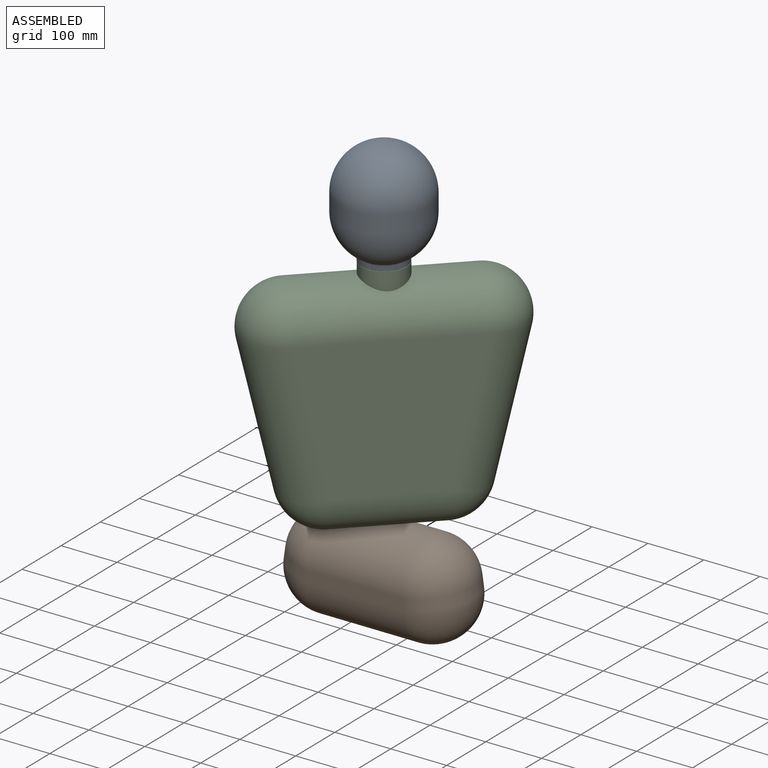
[diagram: assembled view]
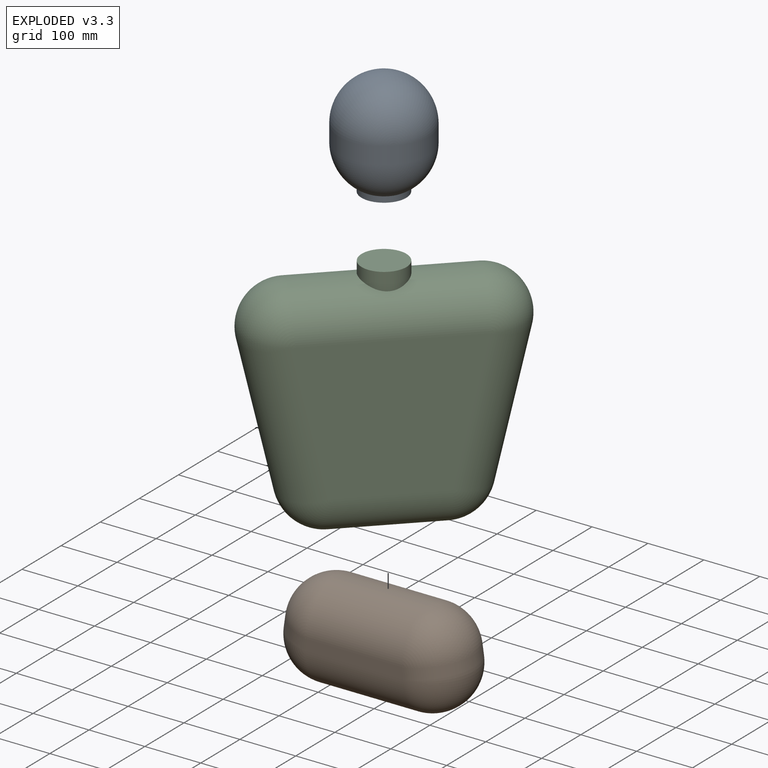
[diagram: exploded view]
GUIDED TOUR — FREECAD ASSEMBLY "plywood_dingy_model"

This assembly has 3 components, labeled P0..P2 below (a component is one placed body or linked part; the same part can appear more than once), held together by 2 modeled joints. A joint is a constraint between two components; its type names the relative motion it leaves free:
  FASTENED — locks the two components together rigidly (no relative motion),
  REVOLUTE — leaves rotation about the listed axis free (a hinge).
Axis/direction vectors are unit vectors and 'through' points are millimeter coordinates, both in the assembly's world frame.

MATES
  1. REVOLUTE [Revolute] "Joint": P1 <-> P2, axis (0.000, 0.000, 1.000) through (0.00, -74.50, 170.00) mm
  2. FASTENED [Fixed] "Joint001": P0 <-> P2, direction (0.000, 0.000, 1.000) through (0.35, -74.85, 590.00) mm

ASSEMBLY ORDER
  1. P2 — the base component [order verified]
  2. P0 [order verified]
  3. P1 [order verified]
Order-tag legend:
  [order verified] — this step's position reverses a verified removal order: the component was checked to insert without passing through the ones already placed.

Of the 3 components, 3 carry a construction recipe — the FreeCAD feature program (sketches with constraints, then the solid features that consume them) that regenerates the part from scratch, quoted from this document or from the linked companion document it references; the rest are supplied as boundary geometry only. The tour below walks the components in assembly order: each is shown spotlighted twice — in the assembled view, then in the exploded view, where a leader line traces a displaced component back to its assembled socket (components that stay in place when exploded have no leader line; saturated green if recipe-attached, orange if geometry-only; every other component desaturated gray) — followed by its recipe or geometry summary and the mates that hold it.
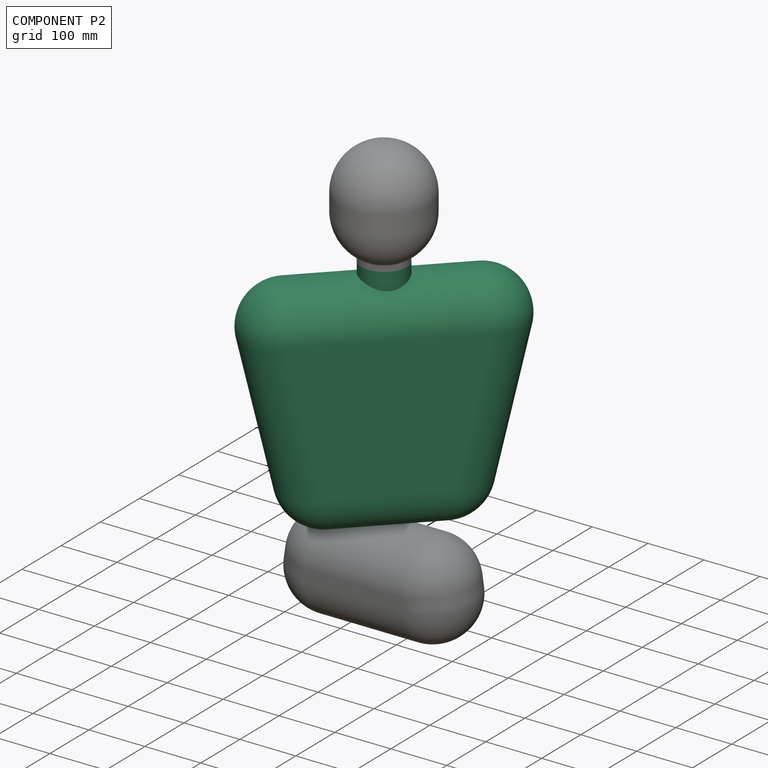
[diagram: component P2 — assembled]
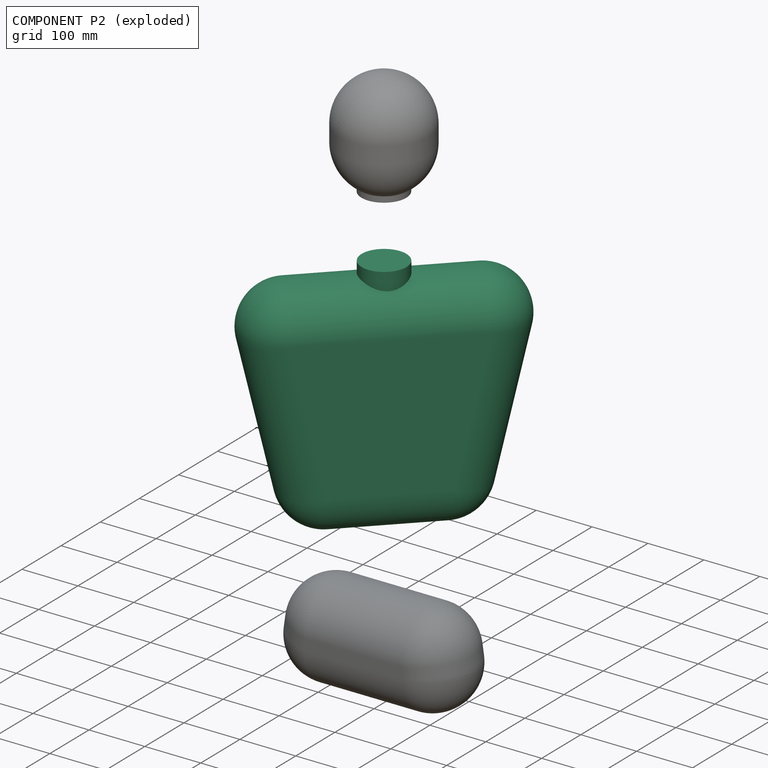
[diagram: component P2 — exploded]
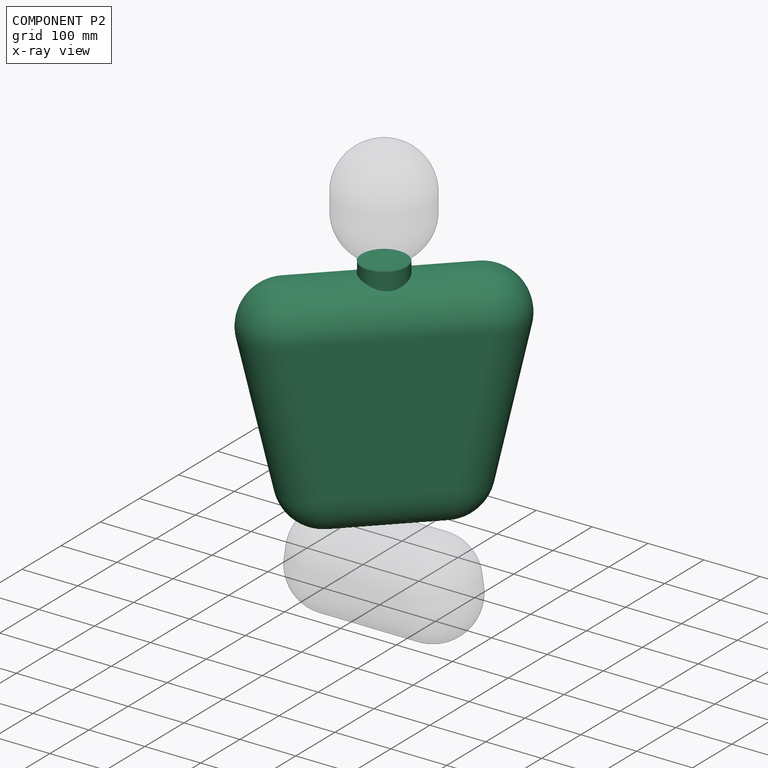
[diagram: component P2 — x-ray view]
COMPONENT P2 — recipe-attached ("torso_upper001", modeled in this document).
Held by: REVOLUTE mate "Joint" to P1; FASTENED mate "Joint001" to P0.
Construction recipe (the document's own serialized feature program — sketch geometry with constraints, then the solid features built on it; lengths are millimeters unless a unit is written):

FEATURE [Sketcher::SketchObject] Sketch008
  ArcFitTolerance = 1e-06
  AttachmentSupport = -> [XZ_Plane008]
  FullyConstrained = true
  MakeInternals = false
  MapMode = 5
  Placement = pos=(0,0,0) rot=(1,0,0;1.5708rad)
  expr: .Constraints.torso_upper = <<male_sizes>>.torso_upper_length
  expr: .Constraints.waist = <<male_sizes>>.torso_waist_width
  expr: Constraints[13] = <<male_sizes>>.torso_shoulder_width
  expr: Constraints[14] = <<male_sizes>>.torso_thickness / 2
  expr: Constraints[15] = <<male_sizes>>.torso_thickness / 2
  expr: Constraints[24] = <<male_sizes>>.torso_thickness / 2
  expr: Constraints[25] = <<male_sizes>>.torso_thickness / 2
  sketch-geometry (12):
    g0: LineSegment StartX=-146.25 StartY=400 StartZ=0 EndX=146.25 EndY=400 EndZ=0
    g1: LineSegment StartX=-90 StartY=9.94e-14 StartZ=0 EndX=90 EndY=-2.329e-13 EndZ=0
    g2: LineSegment StartX=-219.421 StartY=308.537 StartZ=0 EndX=-163.171 EndY=58.5366 EndZ=0
    g3: LineSegment StartX=219.421 StartY=308.537 StartZ=0 EndX=163.171 EndY=58.5366 EndZ=0
    g4: ArcOfCircle CenterX=-146.25 CenterY=325 CenterZ=0 NormalX=0 NormalY=0 NormalZ=1 AngleXU=0 Radius=75 StartAngle=1.5708 EndAngle=3.36291
    g5: GeomPoint X=-240 Y=400 Z=0
    g6: ArcOfCircle CenterX=146.25 CenterY=325 CenterZ=0 NormalX=0 NormalY=0 NormalZ=1 AngleXU=0 Radius=75 StartAngle=6.06187 EndAngle=7.85398
    g7: GeomPoint X=240 Y=400 Z=0
    g8: ArcOfCircle CenterX=-90 CenterY=75 CenterZ=0 NormalX=0 NormalY=0 NormalZ=1 AngleXU=0 Radius=75 StartAngle=3.36291 EndAngle=4.71239
    g9: GeomPoint X=-150 Y=0 Z=0
    g10: ArcOfCircle CenterX=90 CenterY=75 CenterZ=0 NormalX=0 NormalY=0 NormalZ=1 AngleXU=0 Radius=75 StartAngle=4.71239 EndAngle=6.06187
    g11: GeomPoint X=150 Y=0 Z=0
  constraints (26):
    c: Symmetric(g5,g7,g-2)
    c: DistanceX(g9,g11) = 300  'waist'
    c: Symmetric(g11,g9,g-2)
    c: DistanceY(g9,g5) = 400  'torso_upper'
    c: DistanceY(g9) = 0
    c: PointOnObject(g5,g2)
    c: PointOnObject(g5,g0)
    c: Tangent(g2,g4) = -1.5708
    c: Tangent(g0,g4) = 1.5708
    c: PointOnObject(g7,g0)
    c: PointOnObject(g7,g3)
    c: Tangent(g0,g6) = 1.5708
    c: Tangent(g3,g6) = 1.5708
    c: DistanceX(g5,g7) = 480
    c: Distance(g4,g2) = 75
    c: Distance(g6,g3) = 75
    c: PointOnObject(g9,g2)
    c: PointOnObject(g9,g1)
    c: Tangent(g2,g8) = -1.5708
    c: Tangent(g1,g8) = -1.5708
    c: PointOnObject(g11,g1)
    c: PointOnObject(g11,g3)
    c: Tangent(g1,g10) = -1.5708
    c: Tangent(g3,g10) = 1.5708
    c: Distance(g8,g2) = 75
    c: Distance(g10,g3) = 75
FEATURE [PartDesign::Pad] Pad
  Direction = (0,-1,2e-16)
  Length = 150
  Length2 = 10
  Placement = pos=(0,0,0) rot=(1,0,0;1.5708rad)
  Profile = -> Sketch008
  ReferenceAxis = -> Sketch008 [N_Axis]
  Refine = true
  Suppressed = false
  Type = 0
  expr: Length = <<male_sizes>>.torso_thickness
FEATURE [PartDesign::Fillet] Fillet
  Base = -> Pad [Edge24,Edge7,Edge13,Edge19]
  BaseFeature = -> Pad
  Placement = pos=(0,0,0) rot=(1,0,0;1.5708rad)
  Radius = 75
  Refine = true
  SupportTransform = false
  Suppressed = false
  UseAllEdges = false
  expr: Radius = <<male_sizes>>.torso_thickness / 2
FEATURE [PartDesign::Fillet] Fillet001
  Base = -> Fillet [Face4]
  BaseFeature = -> Fillet
  Placement = pos=(0,0,0) rot=(1,0,0;1.5708rad)
  Radius = 74
  Refine = true
  SupportTransform = false
  Suppressed = false
  UseAllEdges = false
  expr: Radius = <<male_sizes>>.torso_thickness / 2 - 1 mm
FEATURE [PartDesign::AdditiveCylinder] Cylinder008
  Angle = 360
  AttacherType = Attacher::AttachEngine3D
  AttachmentOffset = pos=(0,75,-20) rot=(0,0,1;0rad)
  AttachmentSupport = -> [Fillet001]
  BaseFeature = -> Fillet001
  FirstAngle = 0
  Height = 40
  MapMode = 5
  Placement = pos=(-4.446e-13,-75,380) rot=(0,0,1;3.14159rad)
  Radius = 40
  Refine = true
  SecondAngle = 0
  Suppressed = false
  expr: .AttachmentOffset.Base.y = <<male_sizes>>.torso_thickness / 2
  expr: .AttachmentOffset.Base.z = -<<male_sizes>>.head_width / 8
  expr: Height = <<male_sizes>>.head_width / 4
  expr: Radius = <<male_sizes>>.head_width / 4
FEATURE [PartDesign::Body] Body004  label="torso_upper"
  AllowCompound = false
  Group = -> [Sketch008,Pad,Fillet,Fillet001,Cylinder008]
  Origin = -> Origin008
  Tip = -> Cylinder008
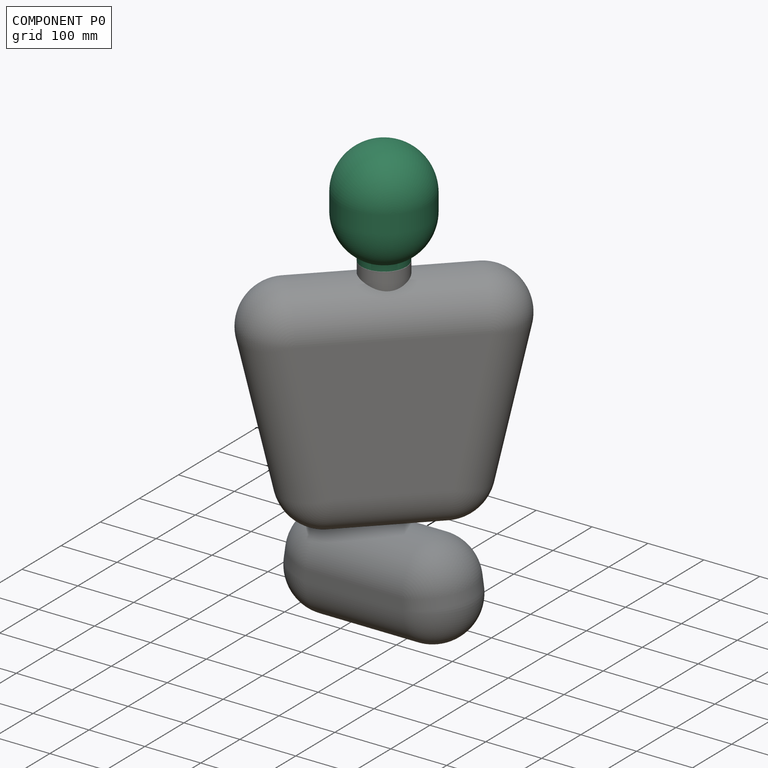
[diagram: component P0 — assembled]
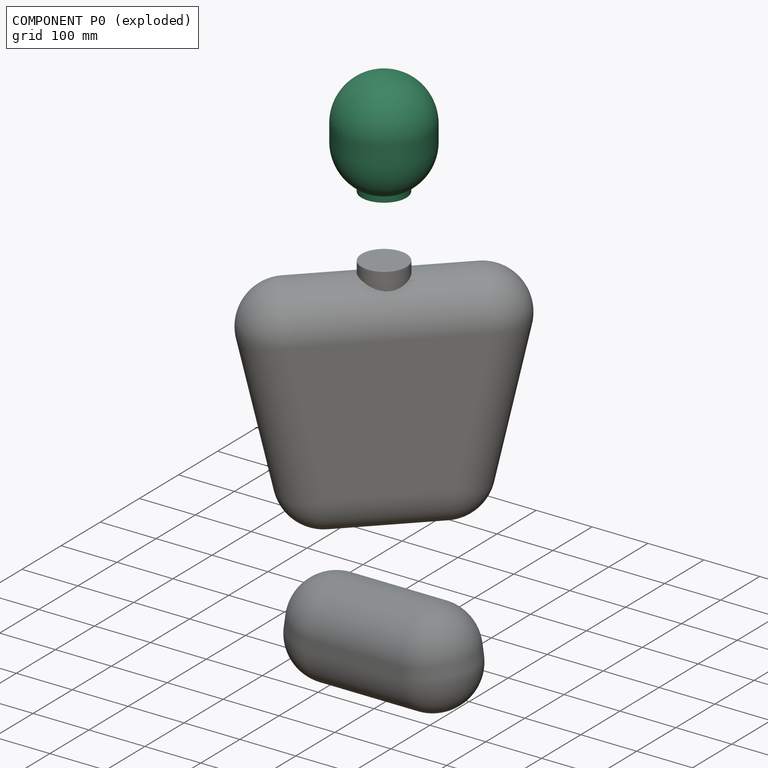
[diagram: component P0 — exploded]
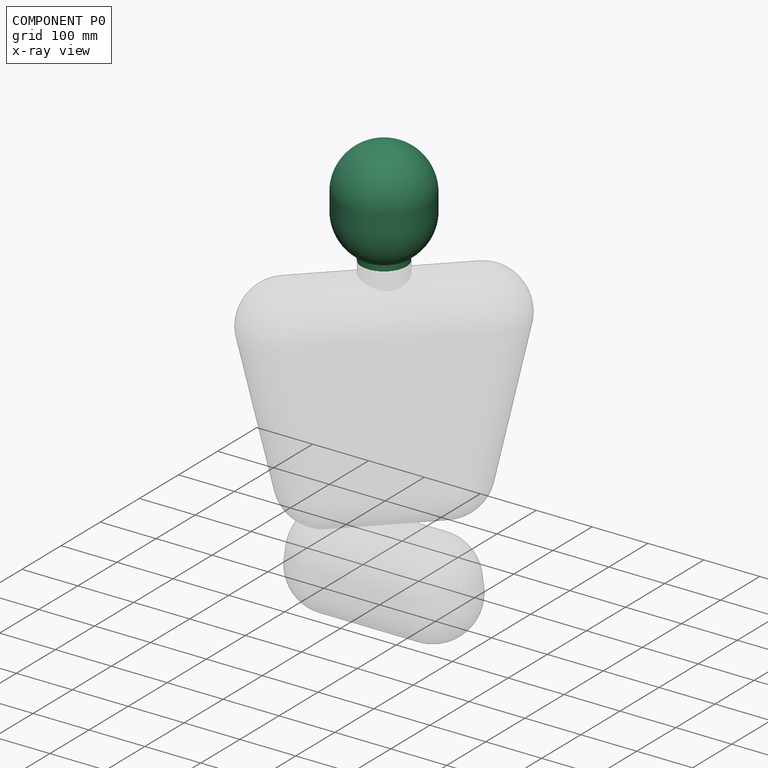
[diagram: component P0 — x-ray view]
COMPONENT P0 — recipe-attached ("head001", modeled in this document).
Held by: FASTENED mate "Joint001" to P2.
Construction recipe (the document's own serialized feature program — sketch geometry with constraints, then the solid features built on it; lengths are millimeters unless a unit is written):

FEATURE [Sketcher::SketchObject] Sketch010
  ArcFitTolerance = 1e-06
  AttachmentSupport = -> [XZ_Plane007]
  FullyConstrained = true
  MakeInternals = false
  MapMode = 5
  Placement = pos=(0,0,0) rot=(1,0,0;1.5708rad)
  expr: .Constraints.head_width = <<male_sizes>>.head_width / 2
  expr: Constraints[8] = <<male_sizes>>.head_height - <<male_sizes>>.head_width
  expr: Constraints[9] = <<male_sizes>>.head_width / 2
  sketch-geometry (4):
    g0: ArcOfCircle CenterX=0 CenterY=110 CenterZ=0 NormalX=0 NormalY=0 NormalZ=1 AngleXU=0 Radius=80 StartAngle=1e-16 EndAngle=3.14159
    g1: ArcOfCircle CenterX=5.3e-15 CenterY=80 CenterZ=0 NormalX=0 NormalY=0 NormalZ=1 AngleXU=0 Radius=80 StartAngle=3.14159 EndAngle=6.28319
    g2: LineSegment StartX=80 StartY=110 StartZ=0 EndX=80 EndY=80 EndZ=0
    g3: LineSegment StartX=-80 StartY=110 StartZ=0 EndX=-80 EndY=80 EndZ=0
  constraints (10):
    c: Tangent(g0,g2) = 1.5708
    c: Tangent(g0,g3) = -1.5708
    c: Tangent(g1,g2) = 1.5708
    c: Tangent(g1,g3) = -1.5708
    c: Equal(g0,g1)
    c: Vertical(g2)
    c: DistanceX(g0) = 0
    c: DistanceX(g0,g0) = 80  'head_width'
    c: DistanceY(g1,g0) = 30
    c: DistanceY(g1) = 80
FEATURE [PartDesign::Pad] Pad002
  Direction = (0,-1,2e-16)
  Length = 160
  Length2 = 10
  Placement = pos=(0,0,0) rot=(1,0,0;1.5708rad)
  Profile = -> Sketch010
  ReferenceAxis = -> Sketch010 [N_Axis]
  Refine = true
  Suppressed = false
  Type = 0
  expr: Length = <<male_sizes>>.head_width
FEATURE [PartDesign::Fillet] Fillet004
  Base = -> Pad002 [Face5,Face6]
  BaseFeature = -> Pad002
  Placement = pos=(0,0,0) rot=(1,0,0;1.5708rad)
  Radius = 79
  Refine = true
  SupportTransform = false
  Suppressed = false
  UseAllEdges = false
  expr: Radius = <<male_sizes>>.head_width / 2 - 1 mm
FEATURE [PartDesign::AdditiveCylinder] Cylinder
  Angle = 360
  AttacherType = Attacher::AttachEngine3D
  AttachmentOffset = pos=(0,-80,0) rot=(0,0,1;0rad)
  AttachmentSupport = -> [XY_Plane007]
  BaseFeature = -> Fillet004
  FirstAngle = 0
  Height = 47.5
  MapMode = 5
  Placement = pos=(0,-80,0) rot=(0,0,1;0rad)
  Radius = 40
  Refine = true
  SecondAngle = 0
  Suppressed = false
  expr: .AttachmentOffset.Base.y = -<<male_sizes>>.head_width / 2
  expr: Height = <<male_sizes>>.head_height / 4
  expr: Radius = <<male_sizes>>.head_width / 4
FEATURE [PartDesign::Body] Body003  label="head"
  AllowCompound = false
  Group = -> [Sketch010,Pad002,Fillet004,Cylinder]
  Origin = -> Origin007
  Tip = -> Cylinder
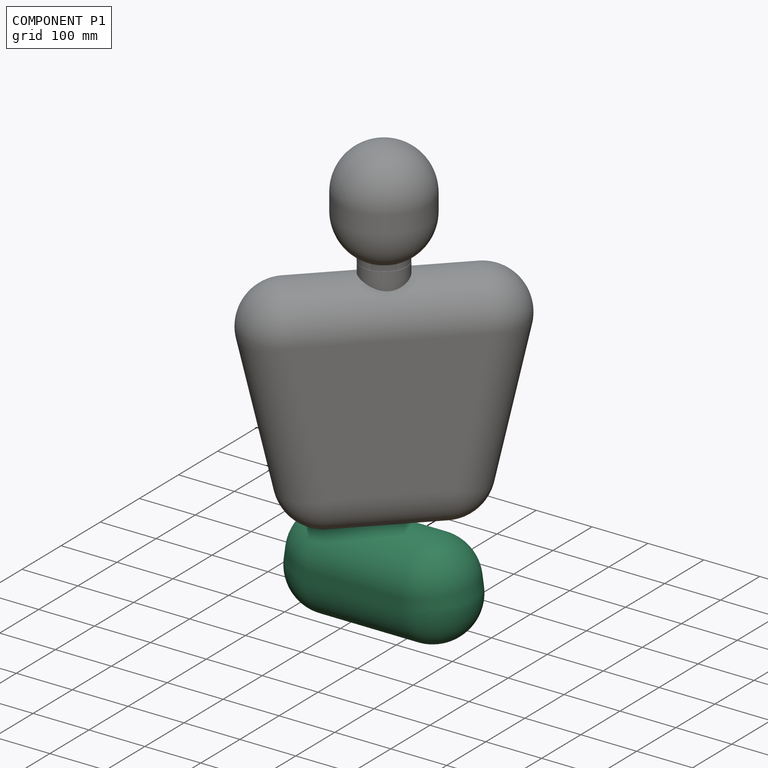
[diagram: component P1 — assembled]
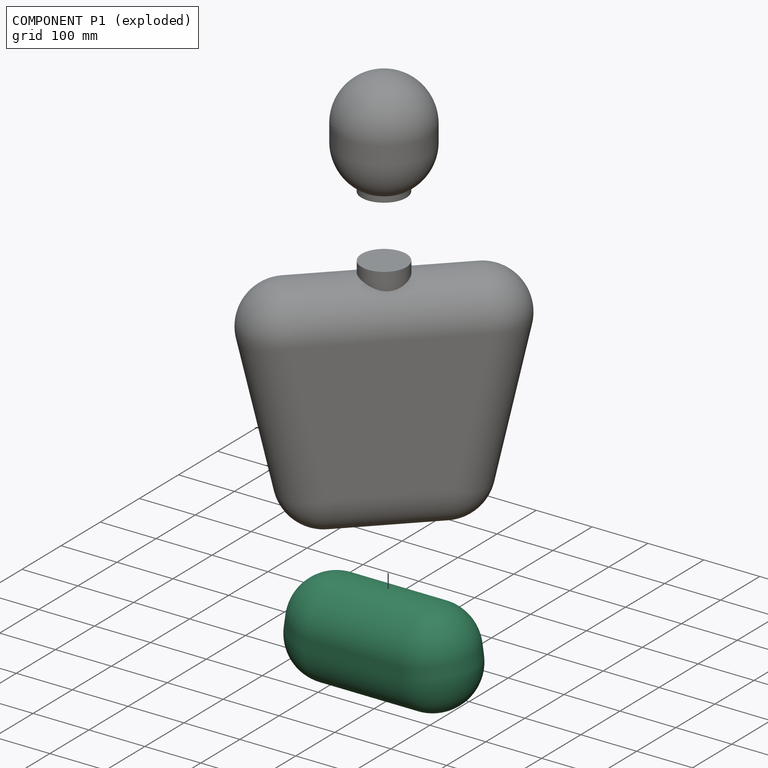
[diagram: component P1 — exploded]
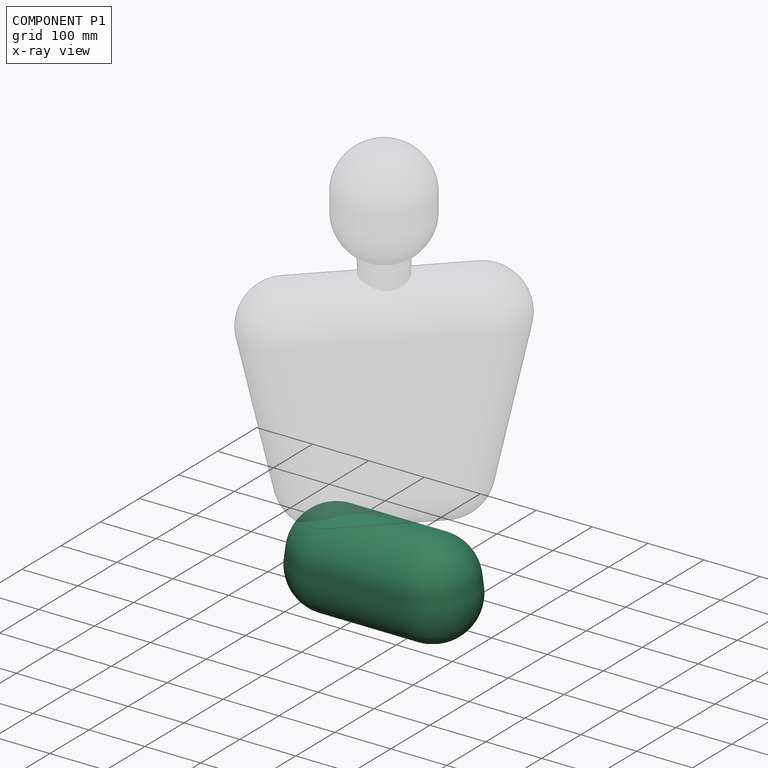
[diagram: component P1 — x-ray view]
COMPONENT P1 — recipe-attached ("torso_lower001", modeled in this document).
Held by: REVOLUTE mate "Joint" to P2.
Construction recipe (the document's own serialized feature program — sketch geometry with constraints, then the solid features built on it; lengths are millimeters unless a unit is written):

FEATURE [Sketcher::SketchObject] Sketch009
  ArcFitTolerance = 1e-06
  AttachmentSupport = -> [XZ_Plane009]
  FullyConstrained = true
  MakeInternals = false
  MapMode = 5
  Placement = pos=(0,0,0) rot=(1,0,0;1.5708rad)
  expr: .Constraints.hips = <<male_sizes>>.torso_hip_width
  expr: .Constraints.waist = <<male_sizes>>.torso_waist_width
  expr: Constraints[22] = <<male_sizes>>.torso_thickness / 2
  expr: Constraints[23] = <<male_sizes>>.torso_thickness / 2
  expr: Constraints[24] = <<male_sizes>>.torso_thickness / 2
  expr: Constraints[25] = <<male_sizes>>.torso_thickness / 2
  expr: Constraints[4] = <<male_sizes>>.torso_lower_length
  sketch-geometry (12):
    g0: LineSegment StartX=-85.2228 StartY=170 StartZ=0 EndX=85.2228 EndY=170 EndZ=0
    g1: LineSegment StartX=87.23 StartY=0 StartZ=0 EndX=-88.1639 EndY=0 EndZ=0
    g2: LineSegment StartX=-159.425 StartY=105.912 StartZ=0 EndX=-162.366 EndY=85.912 EndZ=0
    g3: LineSegment StartX=162.23 StartY=86.8361 StartZ=0 EndX=159.425 EndY=105.912 EndZ=0
    g4: ArcOfCircle CenterX=-85.2228 CenterY=95 CenterZ=0 NormalX=0 NormalY=0 NormalZ=1 AngleXU=0 Radius=75 StartAngle=1.5708 EndAngle=2.99558
    g5: GeomPoint X=-150 Y=170 Z=0
    g6: ArcOfCircle CenterX=85.2228 CenterY=95 CenterZ=0 NormalX=0 NormalY=0 NormalZ=1 AngleXU=0 Radius=75 StartAngle=0.146012 EndAngle=1.5708
    g7: GeomPoint X=150 Y=170 Z=0
    g8: ArcOfCircle CenterX=87.23 CenterY=75.8066 CenterZ=0 NormalX=0 NormalY=0 NormalZ=1 AngleXU=0 Radius=75.8066 StartAngle=4.71239 EndAngle=6.4292
    g9: GeomPoint X=175 Y=0 Z=0
    g10: ArcOfCircle CenterX=-88.1639 CenterY=75 CenterZ=0 NormalX=0 NormalY=0 NormalZ=1 AngleXU=0 Radius=75 StartAngle=2.99558 EndAngle=4.71239
    g11: GeomPoint X=-175 Y=0 Z=0
  constraints (26):
    c: DistanceX(g5,g7) = 300  'waist'
    c: DistanceX(g11,g9) = 350  'hips'
    c: Symmetric(g5,g7,g-2)
    c: Symmetric(g11,g9,g-2)
    c: DistanceY(g11,g5) = 170
    c: DistanceY(g11) = 0
    c: PointOnObject(g5,g2)
    c: PointOnObject(g5,g0)
    c: Tangent(g2,g4) = -1.5708
    c: Tangent(g0,g4) = 1.5708
    c: PointOnObject(g7,g0)
    c: PointOnObject(g7,g3)
    c: Tangent(g0,g6) = 1.5708
    c: Tangent(g3,g6) = -1.5708
    c: PointOnObject(g9,g3)
    c: PointOnObject(g9,g1)
    c: Tangent(g3,g8) = -1.5708
    c: Tangent(g1,g8) = 1.5708
    c: PointOnObject(g11,g1)
    c: PointOnObject(g11,g2)
    c: Tangent(g1,g10) = 1.5708
    c: Tangent(g2,g10) = -1.5708
    c: Distance(g4,g2) = 75
    c: Distance(g6,g3) = 75
    c: Distance(g10,g2) = 75
    c: DistanceX(g8,g3) = 75
FEATURE [PartDesign::Pad] Pad001
  Direction = (0,-1,2e-16)
  Length = 150
  Length2 = 10
  Placement = pos=(0,0,0) rot=(1,0,0;1.5708rad)
  Profile = -> Sketch009
  ReferenceAxis = -> Sketch009 [N_Axis]
  Refine = true
  Suppressed = false
  Type = 0
  expr: Length = <<male_sizes>>.torso_thickness
FEATURE [PartDesign::Fillet] Fillet002
  Base = -> Pad001 [Face10]
  BaseFeature = -> Pad001
  Placement = pos=(0,0,0) rot=(1,0,0;1.5708rad)
  Radius = 75
  Refine = true
  SupportTransform = false
  Suppressed = false
  UseAllEdges = false
  expr: Radius = <<male_sizes>>.torso_thickness / 2
FEATURE [PartDesign::Fillet] Fillet003
  Base = -> Fillet002 [Face4]
  BaseFeature = -> Fillet002
  Placement = pos=(0,0,0) rot=(1,0,0;1.5708rad)
  Radius = 74
  Refine = true
  SupportTransform = false
  Suppressed = false
  UseAllEdges = false
  expr: Radius = <<male_sizes>>.torso_thickness / 2 - 1 mm
FEATURE [PartDesign::Body] Body005  label="torso_lower"
  AllowCompound = false
  Group = -> [Sketch009,Pad001,Fillet002,Fillet003]
  Origin = -> Origin009
  Tip = -> Fillet003
PROVENANCE & LICENSES
Assembly and component geometry: a FreeCAD (.FCStd) document from a public repository crawl; components, placements and joints were extracted with FreeCAD and each solid tessellated.
Construction recipes: the document's own serialized feature recipes (and, for linked parts, the recipes of companion documents from the same project).
License: as declared in the source repository (recorded in the dataset sidecar).
Joints: native FreeCAD joints and A2plus constraints are mapped to standard mate types.
Verification: 3 of this assembly's 3 components carry a construction recipe (3 from this document itself); the rest are geometry-only. Every component's tessellation passed the extraction mesh gates (mesh-volume checksum against the B-rep where available, bounding-box inflation <= 2%).
Renders: orthographic iso camera (az 35 / el 25); the floor grid conveys scale (grid pitch printed in each image; no ruler). In the exploded view each component is displaced by its stored offset vector: the offsets alone carry the explosion direction (mate normal/axis signs are not orientation cues and do not encode it), and separation distances are assigned per mate-chain, not proportionally to assembly-order depth.
